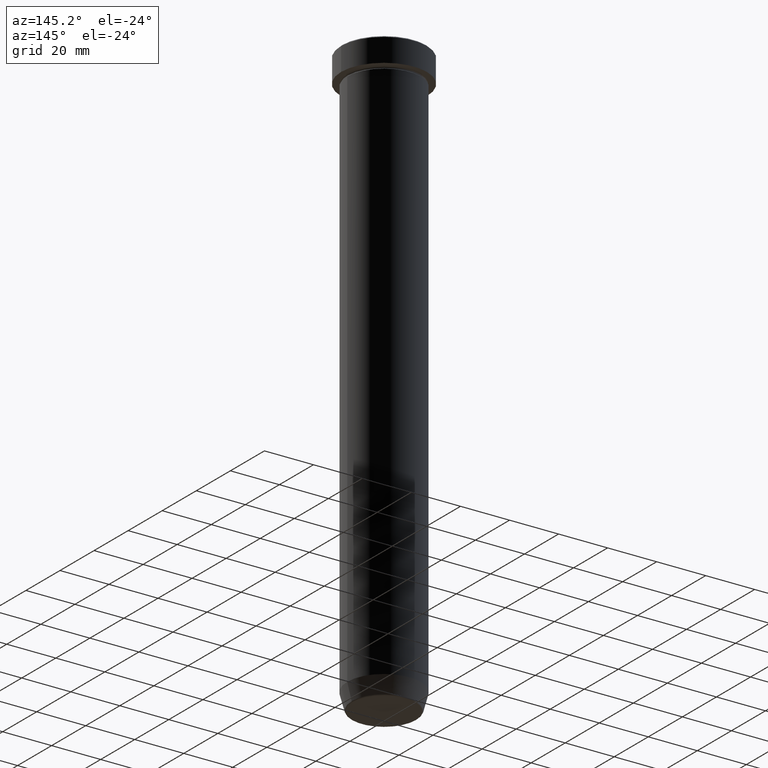
[diagram: clean part render]
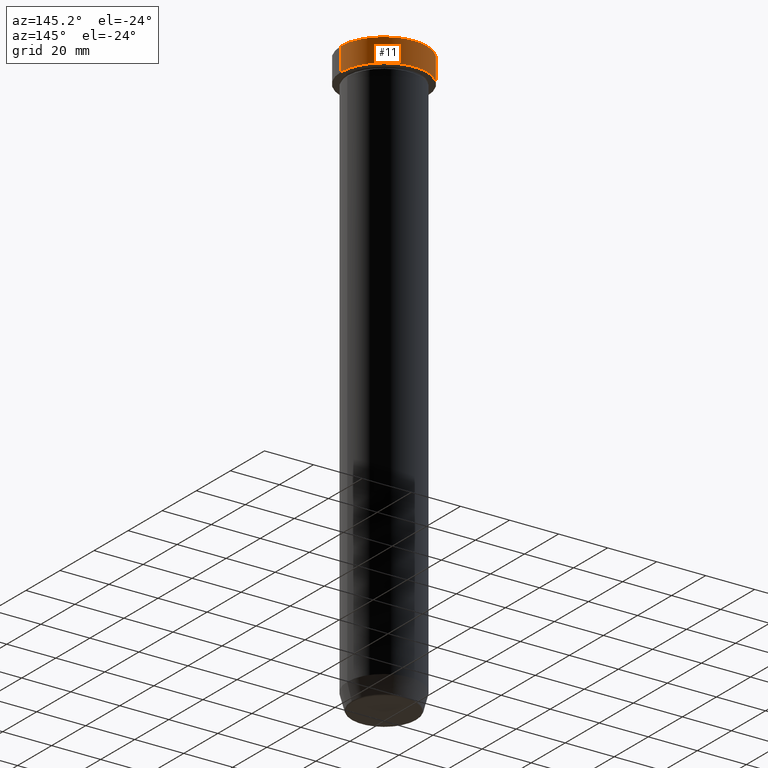
[diagram: same view with one face highlighted and labeled with its STEP entity id]
A machine part, auxiliary view. The second image highlights one B-rep face of the part: STEP entity #11.
In plain terms, the highlighted cylindrical surface (partial cylindrical patch) has radius 17.5 mm, axis along (-0, -0, 1).
Its self-contained STEP definition (entity closure, byte-faithful):
#5 = ORIENTED_EDGE ( 'NONE', *, *, #582, .T. ) ;
#11 = ADVANCED_FACE ( 'NONE', ( #258 ), #445, .T. ) ;
#26 = EDGE_LOOP ( 'NONE', ( #166, #532, #5, #561 ) ) ;
#35 = VERTEX_POINT ( 'NONE', #447 ) ;
#59 = CIRCLE ( 'NONE', #216, 17.50000000000000000 ) ;
#85 = VECTOR ( 'NONE', #560, 1000.000000000000000 ) ;
#89 = DIRECTION ( 'NONE',  ( 0.000000000000000000, 0.000000000000000000, -1.000000000000000000 ) ) ;
#111 = CARTESIAN_POINT ( 'NONE',  ( 17.50000000000000000, 0.000000000000000000, -9.999999999999998224 ) ) ;
#129 = LINE ( 'NONE', #588, #405 ) ;
#166 = ORIENTED_EDGE ( 'NONE', *, *, #597, .T. ) ;
#180 = DIRECTION ( 'NONE',  ( -0.000000000000000000, -0.000000000000000000, 1.000000000000000000 ) ) ;
#216 = AXIS2_PLACEMENT_3D ( 'NONE', #544, #89, #503 ) ;
#217 = DIRECTION ( 'NONE',  ( -0.000000000000000000, -0.000000000000000000, 1.000000000000000000 ) ) ;
#230 = AXIS2_PLACEMENT_3D ( 'NONE', #439, #217, #581 ) ;
#258 = FACE_OUTER_BOUND ( 'NONE', #26, .T. ) ;
#324 = CARTESIAN_POINT ( 'NONE',  ( -17.50000000000000000, 2.143131898507868248E-15, -9.999999999999998224 ) ) ;
#333 = VERTEX_POINT ( 'NONE', #111 ) ;
#354 = CARTESIAN_POINT ( 'NONE',  ( 0.000000000000000000, 0.000000000000000000, -9.999999999999998224 ) ) ;
#358 = DIRECTION ( 'NONE',  ( 1.000000000000000000, 0.000000000000000000, 0.000000000000000000 ) ) ;
#379 = VERTEX_POINT ( 'NONE', #500 ) ;
#385 = EDGE_CURVE ( 'NONE', #416, #35, #477, .T. ) ;
#405 = VECTOR ( 'NONE', #466, 1000.000000000000000 ) ;
#410 = CARTESIAN_POINT ( 'NONE',  ( -17.50000000000000000, 2.143131898507868248E-15, 0.000000000000000000 ) ) ;
#416 = VERTEX_POINT ( 'NONE', #324 ) ;
#439 = CARTESIAN_POINT ( 'NONE',  ( 0.000000000000000000, 0.000000000000000000, 0.000000000000000000 ) ) ;
#442 = AXIS2_PLACEMENT_3D ( 'NONE', #354, #180, #358 ) ;
#445 = CYLINDRICAL_SURFACE ( 'NONE', #230, 17.50000000000000000 ) ;
#447 = CARTESIAN_POINT ( 'NONE',  ( -17.50000000000000000, 2.143131898507868248E-15, -0.5000000000000073275 ) ) ;
#466 = DIRECTION ( 'NONE',  ( -0.000000000000000000, -0.000000000000000000, 1.000000000000000000 ) ) ;
#477 = LINE ( 'NONE', #410, #85 ) ;
#500 = CARTESIAN_POINT ( 'NONE',  ( 17.50000000000000000, 0.000000000000000000, -0.5000000000000073275 ) ) ;
#503 = DIRECTION ( 'NONE',  ( 1.000000000000000000, 0.000000000000000000, 0.000000000000000000 ) ) ;
#511 = EDGE_CURVE ( 'NONE', #333, #379, #129, .T. ) ;
#532 = ORIENTED_EDGE ( 'NONE', *, *, #385, .T. ) ;
#544 = CARTESIAN_POINT ( 'NONE',  ( 0.000000000000000000, 0.000000000000000000, -0.5000000000000073275 ) ) ;
#549 = CIRCLE ( 'NONE', #442, 17.50000000000000000 ) ;
#560 = DIRECTION ( 'NONE',  ( -0.000000000000000000, -0.000000000000000000, 1.000000000000000000 ) ) ;
#561 = ORIENTED_EDGE ( 'NONE', *, *, #511, .F. ) ;
#581 = DIRECTION ( 'NONE',  ( 1.000000000000000000, 0.000000000000000000, 0.000000000000000000 ) ) ;
#582 = EDGE_CURVE ( 'NONE', #35, #379, #59, .T. ) ;
#588 = CARTESIAN_POINT ( 'NONE',  ( 17.50000000000000000, 0.000000000000000000, 0.000000000000000000 ) ) ;
#597 = EDGE_CURVE ( 'NONE', #333, #416, #549, .T. ) ;